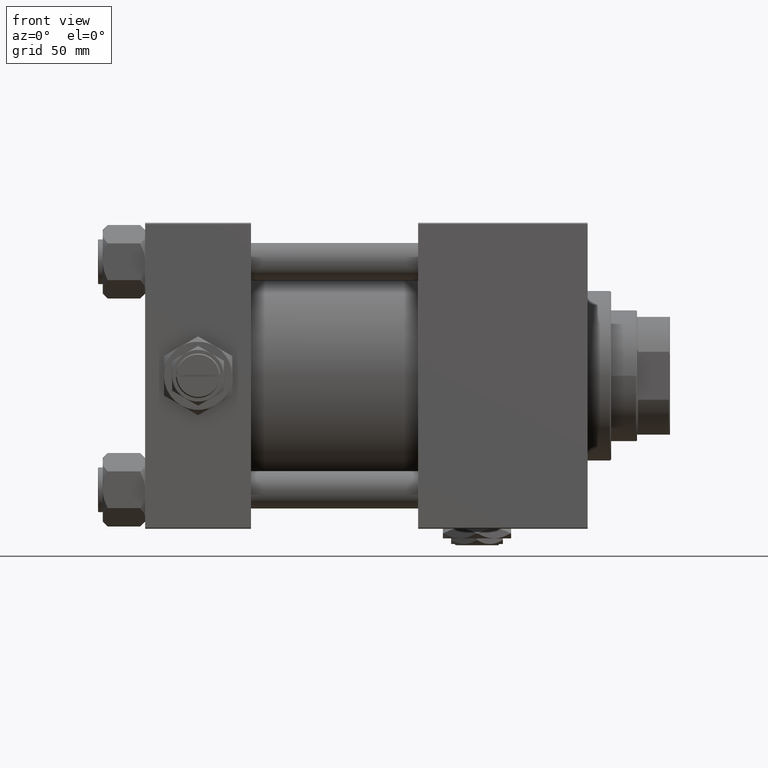
[diagram: clean part render]
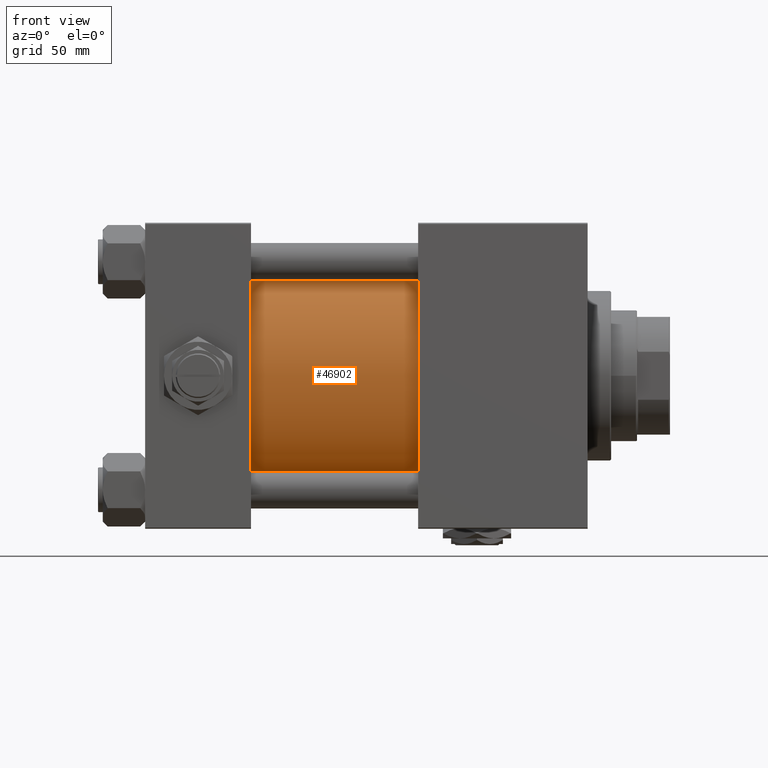
[diagram: same view with one face highlighted and labeled with its STEP entity id]
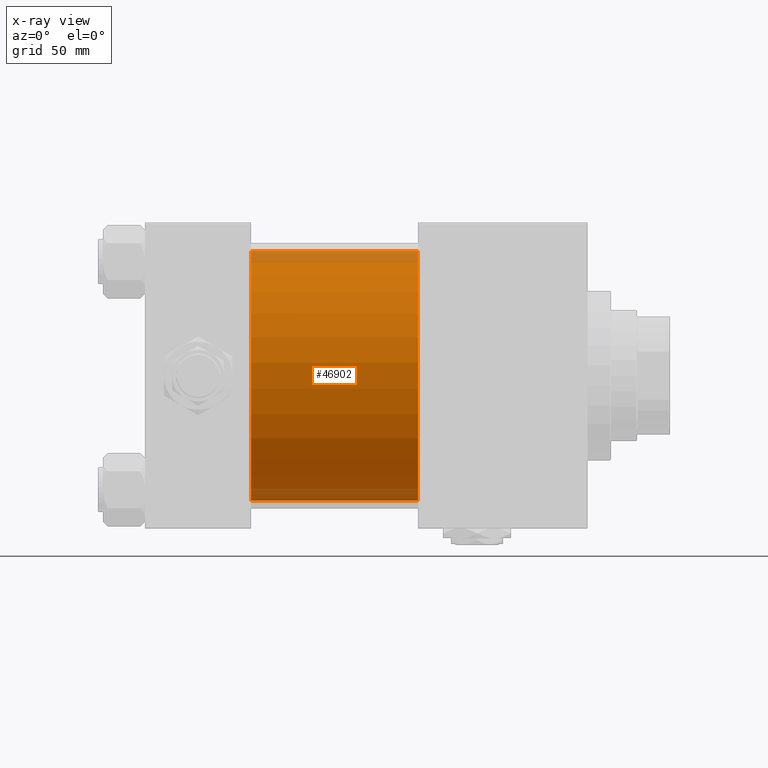
[diagram: x-ray of the same camera — body ghosted, the highlighted face saturated]
A machine part, front view. The second image highlights one B-rep face of the part: STEP entity #46902.
The next image is the same camera in x-ray: the body ghosted, the highlighted face saturated — about 9% of this face is hidden behind the body in this view.
In plain terms, the highlighted cylindrical surface (partial cylindrical patch) has radius 53 mm, axis along (-1, -0, -0).
Its self-contained STEP definition (entity closure, byte-faithful):
#1364 = LINE ( 'NONE', #33917, #37734 ) ;
#2138 = VERTEX_POINT ( 'NONE', #28901 ) ;
#2839 = EDGE_CURVE ( 'NONE', #13814, #2138, #10768, .T. ) ;
#3795 = AXIS2_PLACEMENT_3D ( 'NONE', #40615, #41938, #25127 ) ;
#6412 = CARTESIAN_POINT ( 'NONE',  ( 115.9999999999999858, -2.602085213965210642E-15, 53.00000000000000711 ) ) ;
#6954 = LINE ( 'NONE', #6412, #11056 ) ;
#7262 = CARTESIAN_POINT ( 'NONE',  ( 115.9999999999999858, -2.602085213965210642E-15, 53.00000000000000711 ) ) ;
#8061 = CIRCLE ( 'NONE', #3795, 53.00000000000000711 ) ;
#9422 = ORIENTED_EDGE ( 'NONE', *, *, #2839, .F. ) ;
#9789 = VERTEX_POINT ( 'NONE', #23731 ) ;
#10768 = CIRCLE ( 'NONE', #35460, 53.00000000000000711 ) ;
#11056 = VECTOR ( 'NONE', #11222, 1000.000000000000000 ) ;
#11079 = DIRECTION ( 'NONE',  ( 1.000000000000000000, 0.000000000000000000, 0.000000000000000000 ) ) ;
#11222 = DIRECTION ( 'NONE',  ( -1.000000000000000000, -0.000000000000000000, -0.000000000000000000 ) ) ;
#13150 = ORIENTED_EDGE ( 'NONE', *, *, #25429, .F. ) ;
#13760 = EDGE_LOOP ( 'NONE', ( #13150, #9422, #32695, #27047 ) ) ;
#13814 = VERTEX_POINT ( 'NONE', #7262 ) ;
#14794 = EDGE_CURVE ( 'NONE', #13814, #28480, #6954, .T. ) ;
#15259 = FACE_OUTER_BOUND ( 'NONE', #13760, .T. ) ;
#19588 = CARTESIAN_POINT ( 'NONE',  ( 45.00000000000000000, -2.602085213965210642E-15, 53.00000000000000711 ) ) ;
#19596 = DIRECTION ( 'NONE',  ( 0.000000000000000000, 0.000000000000000000, -1.000000000000000000 ) ) ;
#20847 = DIRECTION ( 'NONE',  ( -1.000000000000000000, -0.000000000000000000, -0.000000000000000000 ) ) ;
#23731 = CARTESIAN_POINT ( 'NONE',  ( 45.00000000000000000, 3.888542821515762466E-15, -53.00000000000000711 ) ) ;
#25127 = DIRECTION ( 'NONE',  ( 0.000000000000000000, 0.000000000000000000, 1.000000000000000000 ) ) ;
#25429 = EDGE_CURVE ( 'NONE', #2138, #9789, #1364, .T. ) ;
#27047 = ORIENTED_EDGE ( 'NONE', *, *, #29803, .T. ) ;
#27520 = DIRECTION ( 'NONE',  ( 0.000000000000000000, 0.000000000000000000, 1.000000000000000000 ) ) ;
#27777 = DIRECTION ( 'NONE',  ( -1.000000000000000000, -0.000000000000000000, -0.000000000000000000 ) ) ;
#28480 = VERTEX_POINT ( 'NONE', #19588 ) ;
#28901 = CARTESIAN_POINT ( 'NONE',  ( 115.9999999999999858, 3.888542821515762466E-15, -53.00000000000000711 ) ) ;
#29803 = EDGE_CURVE ( 'NONE', #28480, #9789, #8061, .T. ) ;
#31521 = CYLINDRICAL_SURFACE ( 'NONE', #38369, 53.00000000000000711 ) ;
#32695 = ORIENTED_EDGE ( 'NONE', *, *, #14794, .T. ) ;
#33917 = CARTESIAN_POINT ( 'NONE',  ( 115.9999999999999858, 3.888542821515762466E-15, -53.00000000000000711 ) ) ;
#35460 = AXIS2_PLACEMENT_3D ( 'NONE', #47647, #11079, #19596 ) ;
#37734 = VECTOR ( 'NONE', #20847, 1000.000000000000000 ) ;
#38369 = AXIS2_PLACEMENT_3D ( 'NONE', #47831, #27777, #27520 ) ;
#40615 = CARTESIAN_POINT ( 'NONE',  ( 45.00000000000000000, -2.602085213965210642E-15, 0.000000000000000000 ) ) ;
#41938 = DIRECTION ( 'NONE',  ( 1.000000000000000000, -0.000000000000000000, 0.000000000000000000 ) ) ;
#46902 = ADVANCED_FACE ( 'NONE', ( #15259 ), #31521, .T. ) ;
#47647 = CARTESIAN_POINT ( 'NONE',  ( 115.9999999999999858, -2.602085213965210642E-15, 0.000000000000000000 ) ) ;
#47831 = CARTESIAN_POINT ( 'NONE',  ( 115.9999999999999858, -2.602085213965210642E-15, 0.000000000000000000 ) ) ;